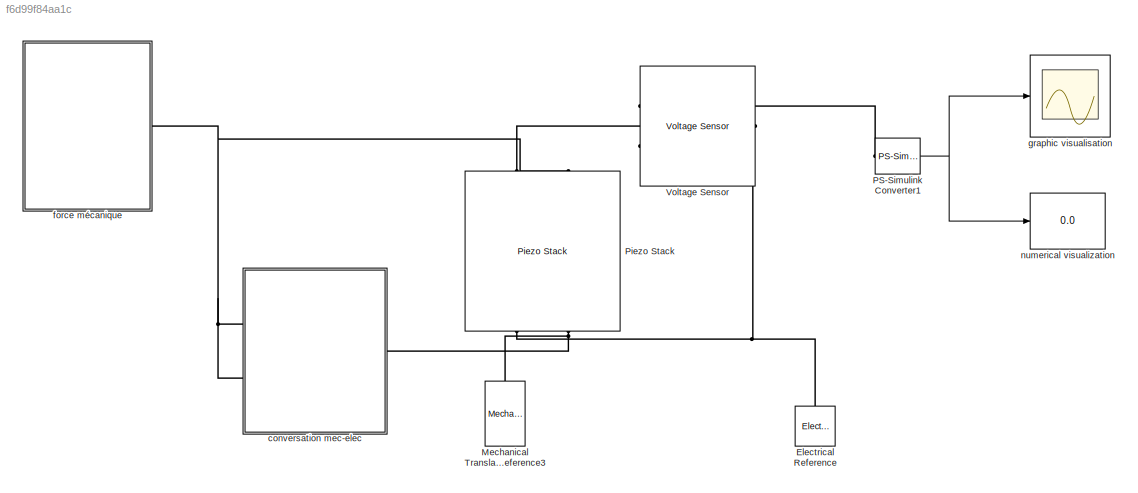
MODEL slx_f6d99f84aa1c
KIND model
BLOCK [Reference] Electrical Reference  REF=fl_lib/Electrical/Electrical Elements/Electrical Reference
  ClassName = reference
  ComponentPath = foundation.electrical.elements.reference
  ComponentVariantNames = reference
  ComponentVariants = foundation.electrical.elements.reference
  LocalVarDescs = |i
  LocalVarLogging = 0
  LocalVarNames = |i
  Ports = [0, 0, 0, 0, 0, 1]
  SchemaVersion = 1
  SourceBlock = fl_lib/Electrical/Electrical Elements/Electrical Reference
  SourceFile = foundation.electrical.elements.reference
  SourceType = Electrical Reference
  i_Log = off
BLOCK [Reference] Mechanical Translational Reference3  REF=fl_lib/Mechanical/Translational
Elements/Mechanical
Translational
Reference
  ClassName = reference
  ComponentPath = foundation.mechanical.translational.reference
  ComponentVariantNames = reference
  ComponentVariants = foundation.mechanical.translational.reference
  LocalVarDescs = |f
  LocalVarLogging = 0
  LocalVarNames = |f
  Ports = [0, 0, 0, 0, 0, 1]
  SchemaVersion = 1
  SourceBlock = fl_lib/Mechanical/Translational\nElements/Mechanical\nTranslational\nReference
  SourceFile = foundation.mechanical.translational.reference
  SourceType = Mechanical\nTranslational\nReference
  f_Log = off
BLOCK [Reference] PS-Simulink Converter1  REF=nesl_utility/PS-Simulink
Converter
  AffineConversion = off
  Frequencies = []
  LeftPortType = input
  PhysicalDomain = network_engine_domain
  Ports = [0, 1, 0, 0, 0, 1]
  PseudoPeriodic = off
  RightPortType = output
  SourceBlock = nesl_utility/PS-Simulink\nConverter
  SourceType = PS-Simulink\nConverter
  SubClassName = ps_output
  Unit = V
BLOCK [Reference] Piezo Stack  REF=elec_lib/Actuators & Drivers/Translational
Actuators/Piezo Stack
  A = 50
  A_unit = mm^2
  C0 = 20
  C0_unit = uF
  ClassName = piezo_stack
  ComponentPath = elec.actuators.translational.piezo_stack
  ComponentVariantNames = piezo_stack
  ComponentVariants = elec.actuators.translational.piezo_stack
  F0 = 3.8e+3
  F0_unit = N
  L0 = 30
  L0_unit = mm
  LocalVarDescs = |Current (A)|Voltage (V)|Power (W)|Force (N)|Translational speed (m/s)
  LocalVarLogging = [0 0 0 0 0]
  LocalVarNames = |current|voltage|power|force|speed
  Mass = 0
  Mass_unit = g
  NL = 50
  NL_unit = 1
  Ports = [0, 0, 0, 0, 0, 2, 2]
  Qm = Inf
  Qm_unit = 1
  SchemaVersion = 1
  SourceBlock = elec_lib/Actuators & Drivers/Translational\nActuators/Piezo Stack
  SourceFile = elec.actuators.translational.piezo_stack
  SourceType = Piezo Stack
  V0 = 120
  V0_unit = V
  V_ini = 0
  V_ini_unit = V
  X0 = 0
  X0_unit = mm
  current_Log = off
  d = 5e-10
  dL0 = 0.038
  dL0_unit = mm
  d_unit = m/V
  dt = 0.3
  dt_unit = mm
  epsilon = 2.124e-8
  epsilon_unit = F/m
  f = Inf
  f_unit = kHz
  force_Log = off
  lam = 0
  lam_unit = N/(m/s)
  param = 1
  paramDyn = 1
  paramDyn_unit = 1
  param_unit = 1
  power_Log = off
  s = 1.9e-11
  s_unit = m^2/N
  speed_Log = off
  voltage_Log = off
BLOCK [Reference] Voltage Sensor  REF=fl_lib/Electrical/Electrical Sensors/Voltage Sensor
  ClassName = voltage
  ComponentPath = foundation.electrical.sensors.voltage
  ComponentVariantNames = voltage
  ComponentVariants = foundation.electrical.sensors.voltage
  LocalVarDescs = |i1|v1
  LocalVarLogging = [0 0]
  LocalVarNames = |i1|v1
  Ports = [0, 0, 0, 0, 0, 1, 2]
  SchemaVersion = 1
  SourceBlock = fl_lib/Electrical/Electrical Sensors/Voltage Sensor
  SourceFile = foundation.electrical.sensors.voltage
  SourceType = Voltage Sensor
  i1_Log = off
  v1_Log = off
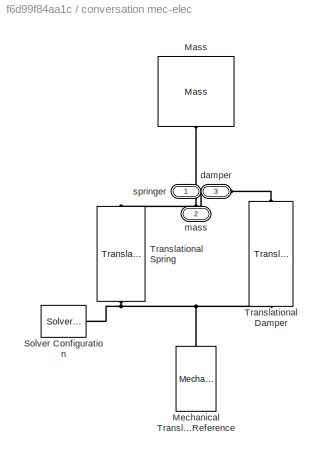
BLOCK [SubSystem] conversation mec-elec
  FunctionWithSeparateData = off
  MaskHideContents = off
  MinAlgLoopOccurrences = off
  Opaque = off
  Ports = [0, 0, 0, 0, 0, 2, 1]
  PropExecContextOutsideSubsystem = off
  RTWSystemCode = Auto
  RequestExecContextInheritance = off
BLOCK [Reference] conversation mec-elec/Mass  REF=fl_lib/Mechanical/Translational
Elements/Mass
  ClassName = mass
  ComponentPath = foundation.mechanical.translational.mass
  ComponentVariantNames = mass
  ComponentVariants = foundation.mechanical.translational.mass
  LocalVarDescs = |f
  LocalVarLogging = 0
  LocalVarNames = |f
  Ports = [0, 0, 0, 0, 0, 1]
  SchemaVersion = 1
  SourceBlock = fl_lib/Mechanical/Translational\nElements/Mass
  SourceFile = foundation.mechanical.translational.mass
  SourceType = Mass
  f_Log = off
  initial_velocity = 0
  initial_velocity_unit = m/s
  mass = 60
  mass_unit = kg
BLOCK [Reference] conversation mec-elec/Mechanical Translational Reference  REF=fl_lib/Mechanical/Translational
Elements/Mechanical
Translational
Reference
  ClassName = reference
  ComponentPath = foundation.mechanical.translational.reference
  ComponentVariantNames = reference
  ComponentVariants = foundation.mechanical.translational.reference
  LocalVarDescs = |f
  LocalVarLogging = 0
  LocalVarNames = |f
  Ports = [0, 0, 0, 0, 0, 1]
  SchemaVersion = 1
  SourceBlock = fl_lib/Mechanical/Translational\nElements/Mechanical\nTranslational\nReference
  SourceFile = foundation.mechanical.translational.reference
  SourceType = Mechanical\nTranslational\nReference
  f_Log = off
BLOCK [Reference] conversation mec-elec/Solver Configuration  REF=nesl_utility/Solver
Configuration
  Accelerate = off
  DelaysMemoryBudget = 1024
  DoDC = off
  DoFixedCost = off
  EnableSwitchedLinearOptims = on
  FrequencyDomain = off
  Harmonics = []
  LeftPortType = input
  LinearAlgebra = Sparse
  LocalSolverChoice = NE_BACKWARD_EULER_ADVANCER
  LocalSolverSampleTime = 0.001
  MaxModeIter = 2
  MaxNonlinIter = 3
  PhysicalDomain = network_engine_domain
  Ports = [0, 0, 0, 0, 0, 0, 1]
  Profile = off
  ResidualTolerance = 1e-09
  RightPortType = generic
  SimulateNoise = off
  SourceBlock = nesl_utility/Solver\nConfiguration
  SourceType = Solver\nConfiguration
  SubClassName = solver
  Tones = []
  UseCCode = off
  UseLocalSampling = off
  UseLocalSolver = off
  UseNewInitialization = off
BLOCK [Reference] conversation mec-elec/Translational Damper  REF=fl_lib/Mechanical/Translational
Elements/Translational Damper
  ClassName = damper
  ComponentPath = foundation.mechanical.translational.damper
  ComponentVariantNames = damper
  ComponentVariants = foundation.mechanical.translational.damper
  D = 100
  D_unit = N/(m/s)
  LocalVarDescs = |f|v
  LocalVarLogging = [0 0]
  LocalVarNames = |f|v
  Ports = [0, 0, 0, 0, 0, 1, 1]
  SchemaVersion = 1
  SourceBlock = fl_lib/Mechanical/Translational\nElements/Translational Damper
  SourceFile = foundation.mechanical.translational.damper
  SourceType = Translational Damper
  f_Log = off
  v_Log = off
BLOCK [Reference] conversation mec-elec/Translational Spring  REF=fl_lib/Mechanical/Translational
Elements/Translational Spring
  ClassName = spring
  ComponentPath = foundation.mechanical.translational.spring
  ComponentVariantNames = spring
  ComponentVariants = foundation.mechanical.translational.spring
  LocalVarDescs = |f|v|x
  LocalVarLogging = [0 0 0]
  LocalVarNames = |f|v|x
  Ports = [0, 0, 0, 0, 0, 1, 1]
  SchemaVersion = 1
  SourceBlock = fl_lib/Mechanical/Translational\nElements/Translational Spring
  SourceFile = foundation.mechanical.translational.spring
  SourceType = Translational Spring
  f_Log = off
  init_def = 1
  init_def_unit = cm
  spr_rate = 1000
  spr_rate_unit = N/m
  v_Log = off
  x_Log = off
BLOCK [PMIOPort] conversation mec-elec/damper
  Port = 3
  Side = Left
BLOCK [PMIOPort] conversation mec-elec/mass
  Port = 2
  Side = Left
BLOCK [PMIOPort] conversation mec-elec/springer
  Port = 1
  Side = Right
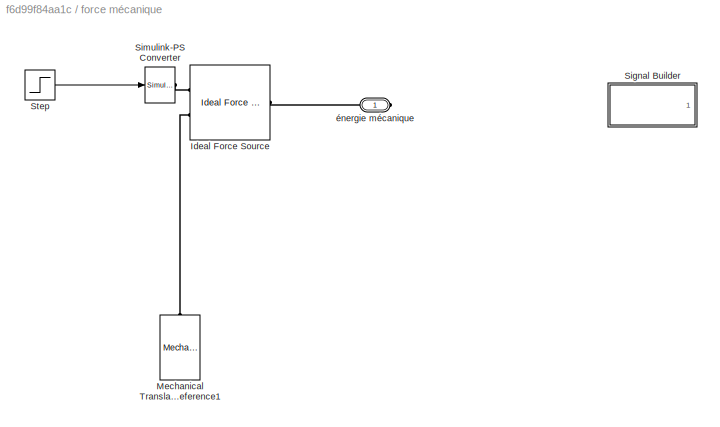
BLOCK [SubSystem] force mécanique
  FunctionWithSeparateData = off
  MaskHideContents = off
  MinAlgLoopOccurrences = off
  Opaque = off
  Ports = [0, 0, 0, 0, 0, 0, 1]
  PropExecContextOutsideSubsystem = off
  RTWSystemCode = Auto
  RequestExecContextInheritance = off
BLOCK [Reference] force mécanique/Ideal Force Source  REF=fl_lib/Mechanical/Mechanical Sources/Ideal Force Source
  ClassName = force
  ComponentPath = foundation.mechanical.sources.force
  ComponentVariantNames = force
  ComponentVariants = foundation.mechanical.sources.force
  LocalVarDescs = |v|f
  LocalVarLogging = [0 0]
  LocalVarNames = |v|f
  Ports = [0, 0, 0, 0, 0, 1, 2]
  SchemaVersion = 1
  SourceBlock = fl_lib/Mechanical/Mechanical Sources/Ideal Force Source
  SourceFile = foundation.mechanical.sources.force
  SourceType = Ideal Force Source
  f_Log = off
  v_Log = off
BLOCK [Reference] force mécanique/Mechanical Translational Reference1  REF=fl_lib/Mechanical/Translational
Elements/Mechanical
Translational
Reference
  ClassName = reference
  ComponentPath = foundation.mechanical.translational.reference
  ComponentVariantNames = reference
  ComponentVariants = foundation.mechanical.translational.reference
  LocalVarDescs = |f
  LocalVarLogging = 0
  LocalVarNames = |f
  Ports = [0, 0, 0, 0, 0, 1]
  SchemaVersion = 1
  SourceBlock = fl_lib/Mechanical/Translational\nElements/Mechanical\nTranslational\nReference
  SourceFile = foundation.mechanical.translational.reference
  SourceType = Mechanical\nTranslational\nReference
  f_Log = off
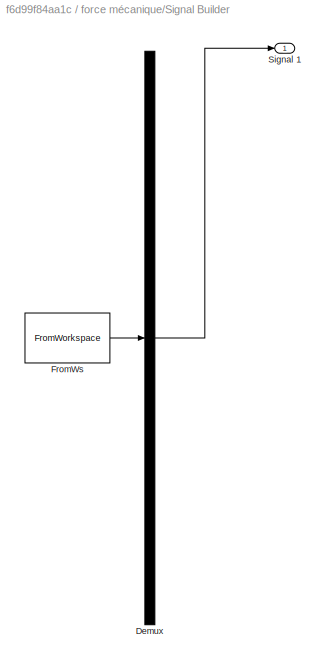
BLOCK [SubSystem] force mécanique/Signal Builder
  ClipboardFcn = sigbuilder_block('clipboard');
  CloseFcn = sigbuilder_block('close');
  ContinueFcn = sigbuilder_block('continue');
  CopyFcn = sigbuilder_block('copy');
  DeleteFcn = sigbuilder_block('delete');
  FunctionWithSeparateData = off
  LoadFcn = sigbuilder_block('load');
  MaskHideContents = on
  MinAlgLoopOccurrences = off
  ModelCloseFcn = sigbuilder_block('modelClose');
  NameChangeFcn = sigbuilder_block('namechange');
  Opaque = off
  OpenFcn = sigbuilder_block('open',[437.25 117.75 550.5 394.5 ]);
  PauseFcn = sigbuilder_block('pause');
  Ports = [0, 1]
  PreSaveFcn = sigbuilder_block('preSave');
  PropExecContextOutsideSubsystem = off
  RTWSystemCode = Auto
  RequestExecContextInheritance = off
  StartFcn = sigbuilder_block('start');
  StopFcn = sigbuilder_block('stop');
  Tag = STV Subsys
BLOCK [Demux] force mécanique/Signal Builder/Demux
  Outputs = 1
  Ports = [1, 1]
  Tag = STV Demux
BLOCK [FromWorkspace] force mécanique/Signal Builder/FromWs
  SampleTime = 0
  Tag = STV FromWs
  VariableName = tuvar
  ZeroCross = on
BLOCK [Outport] force mécanique/Signal Builder/Signal 1
  IconDisplay = Port number
  Tag = STV Outport
BLOCK [Reference] force mécanique/Simulink-PS Converter  REF=nesl_utility/Simulink-PS
Converter
  AffineConversion = off
  Frequencies = []
  InputFilterTimeConstant = 0.001
  InputFiltering = off
  LeftPortType = input
  NoiseDistribution = none
  NoiseParameters = []
  PhysicalDomain = network_engine_domain
  Ports = [1, 0, 0, 0, 0, 0, 1]
  PseudoPeriodic = off
  RightPortType = output
  SimscapeFilterOrder = 1
  SourceBlock = nesl_utility/Simulink-PS\nConverter
  SourceType = Simulink-PS\nConverter
  SubClassName = ps_input
  UdotUserProvided = 1
  Unit = N
BLOCK [Step] force mécanique/Step
  After = -50
  SampleTime = 0
  Time = 0
BLOCK [PMIOPort] force mécanique/énergie mécanique
  Port = 1
  Side = Right
BLOCK [Scope] graphic visualisation
  DataFormat = StructureWithTime
  Floating = off
  NumInputPorts = 1
  Ports = [1]
  SampleTime = 0
  SaveName = ScopeData1
  ShowLegends = off
  TimeRange = 10
  YMax = 30000
  YMin = -30000
BLOCK [Display] numerical visualization
  Decimation = 100
  Lockdown = off
  Ports = [1]
NET PS-Simulink Converter1:1 -> graphic visualisation:1, numerical visualization:1
LINE force mécanique/Step:1 -> force mécanique/Simulink-PS Converter:1
PNET net1: Electrical Reference:LConn1 -- Piezo Stack:RConn1 -- Voltage Sensor:RConn2
PNET net2: Mechanical Translational Reference3:LConn1 -- Piezo Stack:RConn2 -- conversation mec-elec:RConn1
PLINE PS-Simulink Converter1:LConn1 -- Voltage Sensor:RConn1
PLINE Piezo Stack:LConn1 -- Voltage Sensor:LConn1
PNET net3: Piezo Stack:LConn2 -- conversation mec-elec:LConn1 -- conversation mec-elec:LConn2 -- force mécanique:RConn1
PLINE conversation mec-elec/Mass:LConn1 -- conversation mec-elec/mass:RConn1
PNET net4: conversation mec-elec/Mechanical Translational Reference:LConn1 -- conversation mec-elec/Solver Configuration:RConn1 -- conversation mec-elec/Translational Damper:RConn1 -- conversation mec-elec/Translational Spring:RConn1
PLINE conversation mec-elec/Translational Damper:LConn1 -- conversation mec-elec/damper:RConn1
PLINE conversation mec-elec/Translational Spring:LConn1 -- conversation mec-elec/springer:RConn1
PLINE force mécanique/Ideal Force Source:LConn1 -- force mécanique/énergie mécanique:RConn1
PLINE force mécanique/Ideal Force Source:RConn1 -- force mécanique/Simulink-PS Converter:RConn1
PLINE force mécanique/Ideal Force Source:RConn2 -- force mécanique/Mechanical Translational Reference1:LConn1
note: NET lines group one-source signal fan-out (src -> all destinations, sorted); 1:1 wires keep LINE; PNET lines group multi-terminal physical nets as a canonical sorted terminal list (undirected conserving connections); 2-terminal nets keep the pairwise PLINE form
